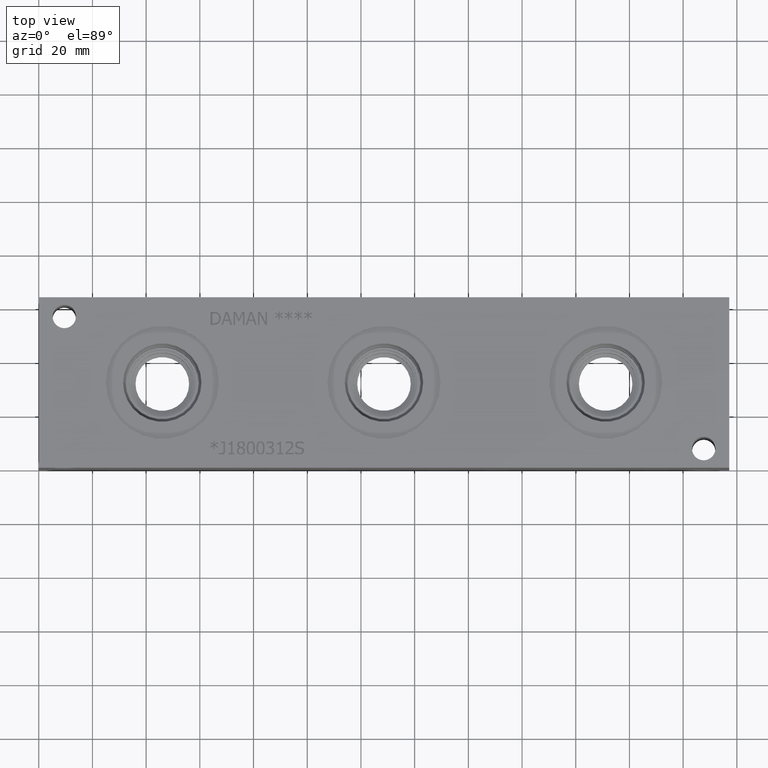
[diagram: clean part render]
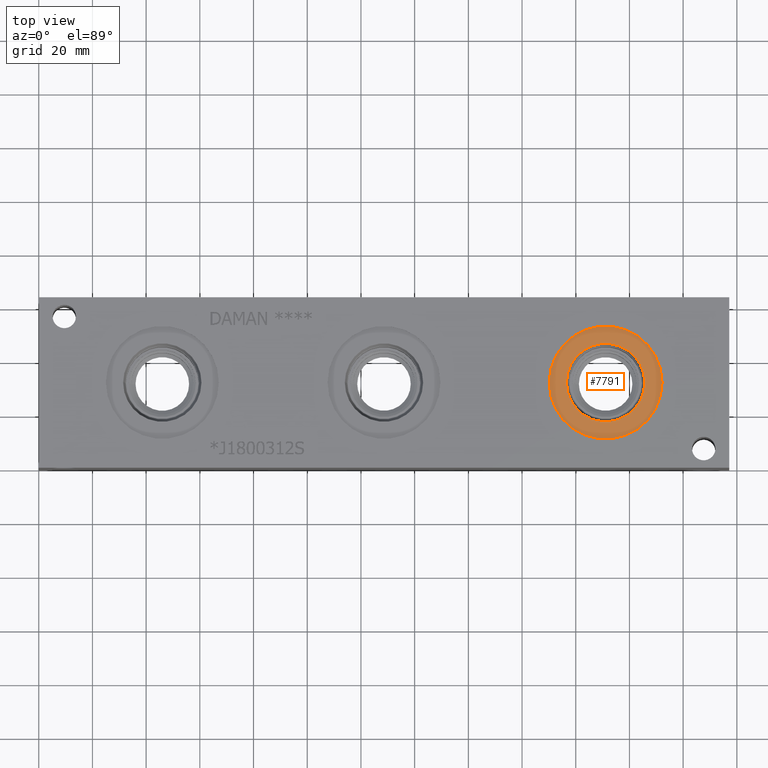
[diagram: same view with one face highlighted and labeled with its STEP entity id]
A machine part, top view. The second image highlights one B-rep face of the part: STEP entity #7791.
In plain terms, the highlighted planar face has unit normal (0, 0, -1).
Its self-contained STEP definition (entity closure, byte-faithful):
#154=CIRCLE('',#8169,21.0185);
#155=CIRCLE('',#8170,21.0185);
#156=CIRCLE('',#8172,14.5923);
#157=CIRCLE('',#8173,14.5923);
#250=FACE_BOUND('',#1365,.T.);
#929=FACE_OUTER_BOUND('',#1364,.T.);
#1364=EDGE_LOOP('',(#6655,#6656));
#1365=EDGE_LOOP('',(#6657,#6658));
#3567=VERTEX_POINT('',#13228);
#3568=VERTEX_POINT('',#13230);
#3569=VERTEX_POINT('',#13234);
#3570=VERTEX_POINT('',#13235);
#4612=EDGE_CURVE('',#3567,#3568,#154,.T.);
#4613=EDGE_CURVE('',#3568,#3567,#155,.T.);
#4614=EDGE_CURVE('',#3569,#3570,#156,.T.);
#4615=EDGE_CURVE('',#3570,#3569,#157,.T.);
#6655=ORIENTED_EDGE('',*,*,#4613,.F.);
#6656=ORIENTED_EDGE('',*,*,#4612,.F.);
#6657=ORIENTED_EDGE('',*,*,#4614,.T.);
#6658=ORIENTED_EDGE('',*,*,#4615,.T.);
#7115=PLANE('',#8171);
#7791=ADVANCED_FACE('',(#929,#250),#7115,.F.);
#8169=AXIS2_PLACEMENT_3D('',#13231,#9620,#9621);
#8170=AXIS2_PLACEMENT_3D('',#13232,#9622,#9623);
#8171=AXIS2_PLACEMENT_3D('',#13233,#9624,#9625);
#8172=AXIS2_PLACEMENT_3D('',#13236,#9626,#9627);
#8173=AXIS2_PLACEMENT_3D('',#13237,#9628,#9629);
#9620=DIRECTION('center_axis',(0.,0.,-1.));
#9621=DIRECTION('ref_axis',(1.,0.,0.));
#9622=DIRECTION('center_axis',(0.,0.,-1.));
#9623=DIRECTION('ref_axis',(1.,0.,0.));
#9624=DIRECTION('center_axis',(0.,0.,-1.));
#9625=DIRECTION('ref_axis',(-1.,0.,0.));
#9626=DIRECTION('center_axis',(0.,0.,-1.));
#9627=DIRECTION('ref_axis',(1.,0.,0.));
#9628=DIRECTION('center_axis',(0.,0.,-1.));
#9629=DIRECTION('ref_axis',(1.,0.,0.));
#13228=CARTESIAN_POINT('',(190.1063,31.75,62.7126));
#13230=CARTESIAN_POINT('',(232.1433,31.75,62.7126));
#13231=CARTESIAN_POINT('Origin',(211.1248,31.75,62.7126));
#13232=CARTESIAN_POINT('Origin',(211.1248,31.75,62.7126));
#13233=CARTESIAN_POINT('Origin',(225.7171,31.75,62.7126));
#13234=CARTESIAN_POINT('',(225.7171,31.75,62.7126));
#13235=CARTESIAN_POINT('',(196.5325,31.75,62.7126));
#13236=CARTESIAN_POINT('Origin',(211.1248,31.75,62.7126));
#13237=CARTESIAN_POINT('Origin',(211.1248,31.75,62.7126));